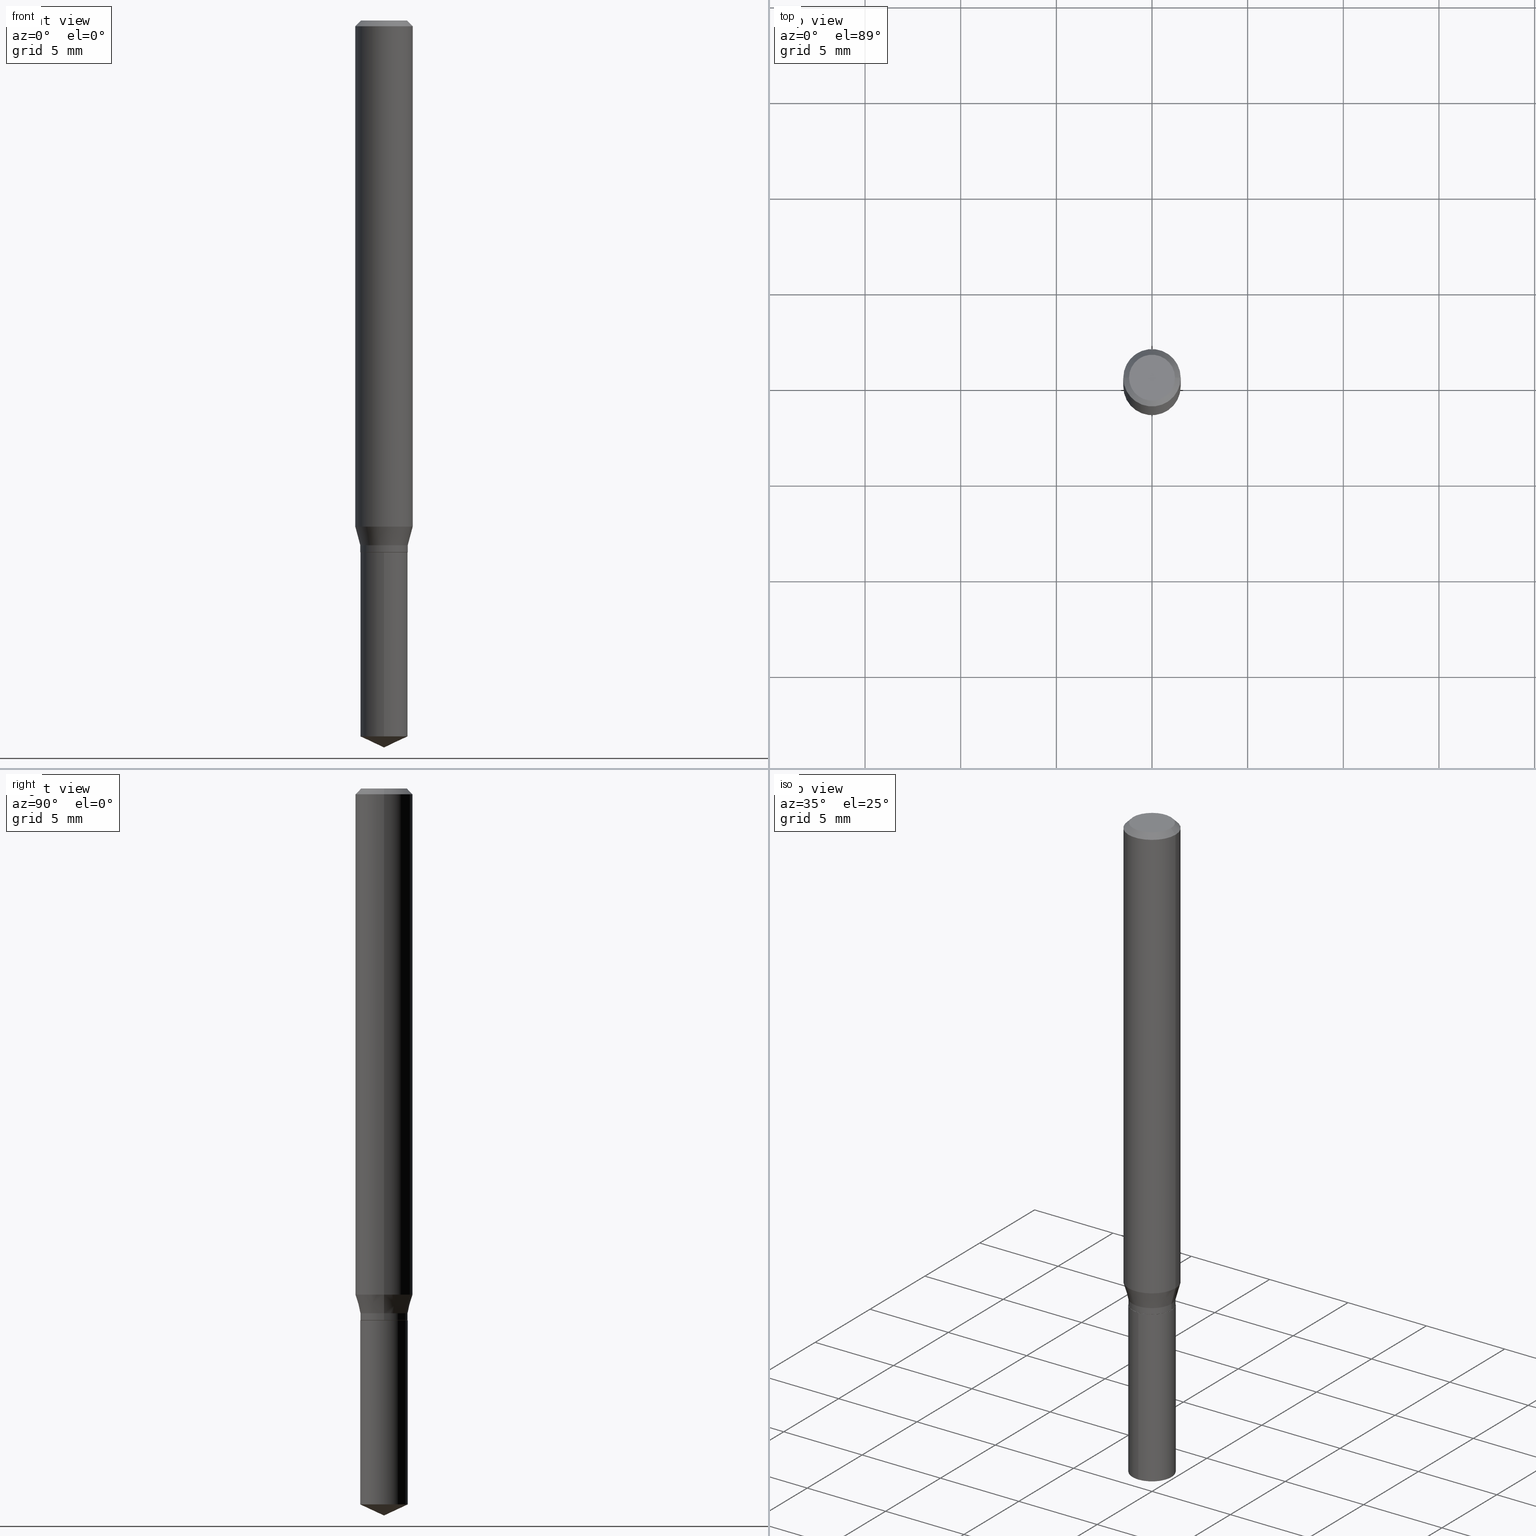
[diagram: canonical four-view strip — front | top / right | iso, engineering-drawing reading convention]
A machine part, canonical four-view strip (front | top / right | iso — engineering-drawing reading convention). The complete STEP part file that produces these views, byte-faithful:
ISO-10303-21;
HEADER;
FILE_DESCRIPTION (( 'STEP AP203' ),
    '1' );
FILE_NAME ('07658.STEP',
    '2024-04-24T00:31:44',
    ( '' ),
    ( '' ),
    'SwSTEP 2.0',
    'SolidWorks 2023',
    '' );
FILE_SCHEMA (( 'CONFIG_CONTROL_DESIGN' ));
ENDSEC;

DATA;
#1 = VECTOR ( 'NONE', #10, 39.37007874015748143 ) ;
#2 = ORIENTED_EDGE ( 'NONE', *, *, #255, .F. ) ;
#3 = DIRECTION ( 'NONE',  ( -2.445468806185136597E-29, 3.491481338843145583E-15, 1.000000000000000000 ) ) ;
#4 = ORIENTED_EDGE ( 'NONE', *, *, #66, .T. ) ;
#5 = CARTESIAN_POINT ( 'NONE',  ( 0.05905000000000013016, -4.049233189994112678E-15, -1.041646479222418487 ) ) ;
#6 = EDGE_LOOP ( 'NONE', ( #155, #194, #118 ) ) ;
#7 = APPROVAL ( #53, 'UNSPECIFIED' ) ;
#8 = FACE_OUTER_BOUND ( 'NONE', #63, .T. ) ;
#9 = AXIS2_PLACEMENT_3D ( 'NONE', #309, #426, #156 ) ;
#10 = DIRECTION ( 'NONE',  ( -2.445458899330790108E-29, 3.491495526022433599E-15, 1.000000000000000000 ) ) ;
#11 = FACE_OUTER_BOUND ( 'NONE', #145, .T. ) ;
#12 = EDGE_CURVE ( 'NONE', #253, #87, #315, .T. ) ;
#13 = CARTESIAN_POINT ( 'NONE',  ( 2.547313972010998166E-29, -3.636889243876738547E-15, -1.041646479222418487 ) ) ;
#14 = PERSON_AND_ORGANIZATION_ROLE ( 'design_supplier' ) ;
#15 = APPROVAL ( #433, 'UNSPECIFIED' ) ;
#16 = DIRECTION ( 'NONE',  ( -2.445468806185136597E-29, 3.491481338843145583E-15, 1.000000000000000000 ) ) ;
#17 = APPLICATION_PROTOCOL_DEFINITION ( 'international standard', 'config_control_design', 1994, #197 ) ;
#18 = DIRECTION ( 'NONE',  ( -2.445458899330790108E-29, 3.491495526022433205E-15, 1.000000000000000000 ) ) ;
#19 = CONICAL_SURFACE ( 'NONE', #85, 0.04880000000000000310, 0.2617993877991498519 ) ;
#20 = CONICAL_SURFACE ( 'NONE', #86, 84.42940631927420725, 1.134464013796315340 ) ;
#21 = CARTESIAN_POINT ( 'NONE',  ( 8.265746106709734507E-48, -1.180129479067563789E-33, -3.380025165646692144E-19 ) ) ;
#22 = ADVANCED_FACE ( 'NONE', ( #346 ), #152, .T. ) ;
#23 = CARTESIAN_POINT ( 'NONE',  ( 0.000000000000000000, 0.000000000000000000, 0.000000000000000000 ) ) ;
#24 = CARTESIAN_POINT ( 'NONE',  ( 2.888098660104663328E-31, -4.123439461173779030E-17, -0.01181000000000006871 ) ) ;
#25 = PERSON_AND_ORGANIZATION ( #223, #361 ) ;
#26 =( GEOMETRIC_REPRESENTATION_CONTEXT ( 3 ) GLOBAL_UNCERTAINTY_ASSIGNED_CONTEXT ( ( #339 ) ) GLOBAL_UNIT_ASSIGNED_CONTEXT ( ( #457, #311, #234 ) ) REPRESENTATION_CONTEXT ( 'NONE', 'WORKASPACE' ) );
#27 = ORIENTED_EDGE ( 'NONE', *, *, #439, .T. ) ;
#28 = AXIS2_PLACEMENT_3D ( 'NONE', #163, #3, #89 ) ;
#29 = ADVANCED_FACE ( 'NONE', ( #425 ), #465, .T. ) ;
#30 = PRODUCT_DEFINITION_SHAPE ( 'NONE', 'NONE',  #331 ) ;
#31 = EDGE_CURVE ( 'NONE', #442, #365, #427, .T. ) ;
#32 = VERTEX_POINT ( 'NONE', #126 ) ;
#33 = CARTESIAN_POINT ( 'NONE',  ( 2.640861763799328493E-29, -3.770450697816712503E-15, -1.079899999999999860 ) ) ;
#34 = AXIS2_PLACEMENT_3D ( 'NONE', #277, #272, #384 ) ;
#35 = FACE_OUTER_BOUND ( 'NONE', #290, .T. ) ;
#36 = VERTEX_POINT ( 'NONE', #90 ) ;
#37 = EDGE_CURVE ( 'NONE', #83, #442, #430, .T. ) ;
#38 = CARTESIAN_POINT ( 'NONE',  ( -0.05904999999999999832, -1.419486333777897856E-15, -0.01181000000000006871 ) ) ;
#39 = ORIENTED_EDGE ( 'NONE', *, *, #255, .T. ) ;
#40 = DIRECTION ( 'NONE',  ( 0.7071067811865453523, -7.319954787623248157E-15, -0.7071067811865496822 ) ) ;
#41 = DIRECTION ( 'NONE',  ( 1.000000000000000000, -6.982962677686266711E-15, 0.000000000000000000 ) ) ;
#42 = DIRECTION ( 'NONE',  ( 1.000000000000000000, -6.982962677686267499E-15, 4.876176775795935793E-29 ) ) ;
#43 = LOCAL_TIME ( 20, 31, 44.00000000000000000, #401 ) ;
#44 = EDGE_CURVE ( 'NONE', #46, #267, #213, .T. ) ;
#45 = EDGE_LOOP ( 'NONE', ( #489, #4, #332, #400 ) ) ;
#46 = VERTEX_POINT ( 'NONE', #201 ) ;
#47 = DIRECTION ( 'NONE',  ( -6.982962677686266711E-15, -1.000000000000000000, 3.520397390770459392E-15 ) ) ;
#48 = LINE ( 'NONE', #84, #313 ) ;
#49 = CIRCLE ( 'NONE', #229, 0.04724000000000000421 ) ;
#50 = DIRECTION ( 'NONE',  ( -2.445468806185136877E-29, 3.491481338843145188E-15, 1.000000000000000000 ) ) ;
#51 = CALENDAR_DATE ( 2024, 23, 4 ) ;
#52 = DIRECTION ( 'NONE',  ( -6.982962677686266711E-15, -1.000000000000000000, 5.598049167344801153E-15 ) ) ;
#53 = APPROVAL_STATUS ( 'not_yet_approved' ) ;
#54 = ADVANCED_BREP_SHAPE_REPRESENTATION ( '07658', ( #80, #233, #130 ), #26 ) ;
#55 = CARTESIAN_POINT ( 'NONE',  ( -0.04830000000000000265, -3.478234183991694710E-15, -1.094500000000000028 ) ) ;
#56 = PERSON_AND_ORGANIZATION ( #223, #361 ) ;
#57 = EDGE_CURVE ( 'NONE', #365, #77, #387, .T. ) ;
#58 = DIRECTION ( 'NONE',  ( -2.445468806185136597E-29, 3.491481338843145583E-15, 1.000000000000000000 ) ) ;
#59 = CONICAL_SURFACE ( 'NONE', #397, 0.04880000000000000310, 0.2617993877991498519 ) ;
#60 = LOCAL_TIME ( 20, 31, 44.00000000000000000, #133 ) ;
#61 = AXIS2_PLACEMENT_3D ( 'NONE', #245, #394, #319 ) ;
#62 = CARTESIAN_POINT ( 'NONE',  ( 3.603013495172768247E-29, -5.144159106827160927E-15, -1.473344186282036006 ) ) ;
#63 = EDGE_LOOP ( 'NONE', ( #269, #71 ) ) ;
#64 = DATE_AND_TIME ( #281, #43 ) ;
#65 = ORIENTED_EDGE ( 'NONE', *, *, #44, .T. ) ;
#66 = EDGE_CURVE ( 'NONE', #411, #267, #235, .T. ) ;
#67 = APPLICATION_CONTEXT ( 'configuration controlled 3d designs of mechanical parts and assemblies' ) ;
#68 = AXIS2_PLACEMENT_3D ( 'NONE', #92, #423, #42 ) ;
#69 = CC_DESIGN_DATE_AND_TIME_ASSIGNMENT ( #176, #324, ( #114 ) ) ;
#70 = CARTESIAN_POINT ( 'NONE',  ( 2.676565608369632355E-29, -3.821426325363822773E-15, -1.094500000000000028 ) ) ;
#71 = ORIENTED_EDGE ( 'NONE', *, *, #406, .T. ) ;
#72 = CYLINDRICAL_SURFACE ( 'NONE', #170, 0.05905000000000006771 ) ;
#73 = ORIENTED_EDGE ( 'NONE', *, *, #143, .T. ) ;
#74 = CONICAL_SURFACE ( 'NONE', #262, 0.04830000000000000265, 0.7853981633972775267 ) ;
#75 = DIRECTION ( 'NONE',  ( 6.982962677686265922E-15, 1.000000000000000000, -3.491495526022433599E-15 ) ) ;
#76 = AXIS2_PLACEMENT_3D ( 'NONE', #469, #132, #405 ) ;
#77 = VERTEX_POINT ( 'NONE', #165 ) ;
#78 = CARTESIAN_POINT ( 'NONE',  ( 2.547313972010998166E-29, -3.636889243876738547E-15, -1.041646479222418487 ) ) ;
#79 = CARTESIAN_POINT ( 'NONE',  ( 2.888098660104663328E-31, -4.123439461173779030E-17, -0.01181000000000006871 ) ) ;
#80 = MANIFOLD_SOLID_BREP ( 'Body-Move/Copy2[1]', #184 ) ;
#81 = ADVANCED_FACE ( 'NONE', ( #237 ), #434, .T. ) ;
#82 =( LENGTH_UNIT ( ) NAMED_UNIT ( * ) SI_UNIT ( $, .METRE. ) );
#83 = VERTEX_POINT ( 'NONE', #204 ) ;
#84 = CARTESIAN_POINT ( 'NONE',  ( 0.04880000000000000310, -4.111219276487801832E-15, -1.079899999999999860 ) ) ;
#85 = AXIS2_PLACEMENT_3D ( 'NONE', #484, #185, #340 ) ;
#86 = AXIS2_PLACEMENT_3D ( 'NONE', #134, #284, #47 ) ;
#87 = VERTEX_POINT ( 'NONE', #385 ) ;
#88 = CARTESIAN_POINT ( 'NONE',  ( -0.04880000000000000310, 3.467448550509289127E-16, -2.400440324044393995E-30 ) ) ;
#89 = DIRECTION ( 'NONE',  ( 1.000000000000000000, -6.982962677686264344E-15, 0.000000000000000000 ) ) ;
#90 = CARTESIAN_POINT ( 'NONE',  ( -3.407685786710537815E-16, -0.04880000000000515176, -1.473344186282035784 ) ) ;
#91 = ADVANCED_FACE ( 'NONE', ( #93 ), #230, .T. ) ;
#92 = CARTESIAN_POINT ( 'NONE',  ( 0.000000000000000000, 0.000000000000000000, 0.000000000000000000 ) ) ;
#93 = FACE_OUTER_BOUND ( 'NONE', #409, .T. ) ;
#94 = CARTESIAN_POINT ( 'NONE',  ( 3.467448550509555861E-16, 0.04879999999999617977, -1.094500000000000028 ) ) ;
#95 = APPROVAL_ROLE ( '' ) ;
#96 = EDGE_CURVE ( 'NONE', #402, #87, #360, .T. ) ;
#97 = CARTESIAN_POINT ( 'NONE',  ( 3.603013495172768247E-29, -5.144159106827160927E-15, -1.473344186282036006 ) ) ;
#98 = ADVANCED_FACE ( 'NONE', ( #171 ), #481, .T. ) ;
#99 = CARTESIAN_POINT ( 'NONE',  ( 0.000000000000000000, 0.000000000000000000, 0.000000000000000000 ) ) ;
#100 = VECTOR ( 'NONE', #40, 39.37007874015748143 ) ;
#101 = AXIS2_PLACEMENT_3D ( 'NONE', #456, #273, #124 ) ;
#102 = PERSON_AND_ORGANIZATION ( #223, #361 ) ;
#103 = ORIENTED_EDGE ( 'NONE', *, *, #260, .F. ) ;
#104 = ADVANCED_FACE ( 'NONE', ( #462 ), #20, .T. ) ;
#105 = ORIENTED_EDGE ( 'NONE', *, *, #37, .F. ) ;
#106 = CIRCLE ( 'NONE', #200, 0.05904999999999999832 ) ;
#107 = ORIENTED_EDGE ( 'NONE', *, *, #31, .F. ) ;
#108 = CARTESIAN_POINT ( 'NONE',  ( -0.04724000000000000421, 3.504923541997677355E-16, -3.380025165670481712E-19 ) ) ;
#109 = PRODUCT ( '07658', '07658', '', ( #251 ) ) ;
#110 = DIRECTION ( 'NONE',  ( -0.7071067811865453523, 2.468850131082234184E-15, -0.7071067811865496822 ) ) ;
#111 = VERTEX_POINT ( 'NONE', #198 ) ;
#112 = DIRECTION ( 'NONE',  ( 2.445458899330789267E-29, -3.491495526022433599E-15, -1.000000000000000000 ) ) ;
#113 = EDGE_LOOP ( 'NONE', ( #140, #350, #341, #440 ) ) ;
#114 = SECURITY_CLASSIFICATION ( '', '', #366 ) ;
#115 = CARTESIAN_POINT ( 'NONE',  ( 0.04880000000000000310, -4.111219276487801832E-15, -1.079899999999999860 ) ) ;
#116 = EDGE_LOOP ( 'NONE', ( #407, #27, #2, #338 ) ) ;
#117 = CARTESIAN_POINT ( 'NONE',  ( 0.04830000000000000265, -4.158703422696069885E-15, -1.094500000000000028 ) ) ;
#118 = ORIENTED_EDGE ( 'NONE', *, *, #167, .F. ) ;
#119 = DIRECTION ( 'NONE',  ( -0.2588190451025211281, 5.211531920934547886E-15, 0.9659258262890679791 ) ) ;
#120 = ORIENTED_EDGE ( 'NONE', *, *, #96, .T. ) ;
#121 = LINE ( 'NONE', #117, #280 ) ;
#122 = CIRCLE ( 'NONE', #160, 0.04880000000000000310 ) ;
#123 = AXIS2_PLACEMENT_3D ( 'NONE', #363, #18, #128 ) ;
#124 = DIRECTION ( 'NONE',  ( -1.000000000000000000, 6.982962677686266711E-15, 0.000000000000000000 ) ) ;
#125 = CARTESIAN_POINT ( 'NONE',  ( -0.05905000000000006771, 4.195754854663396409E-16, -2.904631170795525045E-30 ) ) ;
#126 = CARTESIAN_POINT ( 'NONE',  ( 0.04880000000000000310, -4.160449163365490599E-15, -1.093999999999999861 ) ) ;
#127 = PLANE ( 'NONE',  #9 ) ;
#128 = DIRECTION ( 'NONE',  ( -6.982962677686266711E-15, -1.000000000000000000, 2.799024583672400577E-15 ) ) ;
#129 = APPROVAL_STATUS ( 'not_yet_approved' ) ;
#130 = AXIS2_PLACEMENT_3D ( 'NONE', #23, #431, #358 ) ;
#131 = CC_DESIGN_APPROVAL ( #7, ( #381 ) ) ;
#132 = DIRECTION ( 'NONE',  ( -2.445468806185136597E-29, 3.491481338843145583E-15, 1.000000000000000000 ) ) ;
#133 = COORDINATED_UNIVERSAL_TIME_OFFSET ( 5, 0, .BEHIND. ) ;
#134 = CARTESIAN_POINT ( 'NONE',  ( -9.261924752013118283E-28, 1.322368428517963298E-13, 37.87397874015748300 ) ) ;
#135 = CALENDAR_DATE ( 2024, 23, 4 ) ;
#136 = DIRECTION ( 'NONE',  ( -2.445468806185136597E-29, 3.491481338843145583E-15, 1.000000000000000000 ) ) ;
#137 = CIRCLE ( 'NONE', #328, 0.04880000000000000310 ) ;
#138 = COORDINATED_UNIVERSAL_TIME_OFFSET ( 5, 0, .BEHIND. ) ;
#139 = ORIENTED_EDGE ( 'NONE', *, *, #439, .F. ) ;
#140 = ORIENTED_EDGE ( 'NONE', *, *, #429, .F. ) ;
#141 = LINE ( 'NONE', #371, #335 ) ;
#142 = APPROVAL_PERSON_ORGANIZATION ( #480, #342, #172 ) ;
#143 = EDGE_CURVE ( 'NONE', #186, #36, #391, .T. ) ;
#144 = CARTESIAN_POINT ( 'NONE',  ( -0.05904999999999999832, 3.711095515056362547E-16, -0.01181000000000006871 ) ) ;
#145 = EDGE_LOOP ( 'NONE', ( #217, #180, #454, #348 ) ) ;
#146 = CARTESIAN_POINT ( 'NONE',  ( 2.640861763799328493E-29, -3.770450697816712503E-15, -1.079899999999999860 ) ) ;
#147 = ORIENTED_EDGE ( 'NONE', *, *, #248, .F. ) ;
#148 = FACE_OUTER_BOUND ( 'NONE', #447, .T. ) ;
#149 = ORIENTED_EDGE ( 'NONE', *, *, #464, .T. ) ;
#150 = VECTOR ( 'NONE', #119, 39.37007874015748854 ) ;
#151 = DIRECTION ( 'NONE',  ( -2.445458899330790108E-29, 3.491495526022433205E-15, 1.000000000000000000 ) ) ;
#152 = CONICAL_SURFACE ( 'NONE', #101, 0.05904999999999999832, 0.7853981633974452814 ) ;
#153 = ORIENTED_EDGE ( 'NONE', *, *, #214, .F. ) ;
#154 = CYLINDRICAL_SURFACE ( 'NONE', #212, 0.04880000000000000310 ) ;
#155 = ORIENTED_EDGE ( 'NONE', *, *, #143, .F. ) ;
#156 = DIRECTION ( 'NONE',  ( -1.000000000000000000, 6.982962677686265922E-15, -4.876176775795935793E-29 ) ) ;
#157 = CARTESIAN_POINT ( 'NONE',  ( -9.261924752013118283E-28, 1.322368428517963298E-13, 37.87397874015748300 ) ) ;
#158 = EDGE_CURVE ( 'NONE', #232, #402, #451, .T. ) ;
#159 = LINE ( 'NONE', #377, #100 ) ;
#160 = AXIS2_PLACEMENT_3D ( 'NONE', #299, #257, #303 ) ;
#161 = AXIS2_PLACEMENT_3D ( 'NONE', #97, #317, #52 ) ;
#162 = DIRECTION ( 'NONE',  ( 1.000000000000000000, -6.982962677686265133E-15, 0.000000000000000000 ) ) ;
#163 = CARTESIAN_POINT ( 'NONE',  ( 2.676565608369632355E-29, -3.821426325363822773E-15, -1.094500000000000028 ) ) ;
#164 = CC_DESIGN_PERSON_AND_ORGANIZATION_ASSIGNMENT ( #476, #14, ( #381 ) ) ;
#165 = CARTESIAN_POINT ( 'NONE',  ( -0.04880000000000000310, -3.448320786204627530E-15, -1.079899999999999860 ) ) ;
#166 = PERSON_AND_ORGANIZATION_ROLE ( 'design_owner' ) ;
#167 = EDGE_CURVE ( 'NONE', #36, #411, #250, .T. ) ;
#168 = DIRECTION ( 'NONE',  ( -2.445458899330790108E-29, 3.491495526022433599E-15, 1.000000000000000000 ) ) ;
#169 = DATE_AND_TIME ( #135, #206 ) ;
#170 = AXIS2_PLACEMENT_3D ( 'NONE', #99, #136, #475 ) ;
#171 = FACE_OUTER_BOUND ( 'NONE', #382, .T. ) ;
#172 = APPROVAL_ROLE ( '' ) ;
#173 = DIRECTION ( 'NONE',  ( 1.000000000000000000, -6.982962677686264344E-15, 0.000000000000000000 ) ) ;
#174 = DATE_AND_TIME ( #441, #404 ) ;
#175 = LINE ( 'NONE', #144, #437 ) ;
#176 = DATE_AND_TIME ( #51, #60 ) ;
#177 = EDGE_CURVE ( 'NONE', #36, #46, #203, .T. ) ;
#178 = CIRCLE ( 'NONE', #34, 0.04724000000000000421 ) ;
#179 = ORIENTED_EDGE ( 'NONE', *, *, #412, .F. ) ;
#180 = ORIENTED_EDGE ( 'NONE', *, *, #275, .T. ) ;
#181 = ORIENTED_EDGE ( 'NONE', *, *, #369, .T. ) ;
#182 = DIRECTION ( 'NONE',  ( 1.000000000000000000, -6.982962677686264344E-15, 0.000000000000000000 ) ) ;
#183 = AXIS2_PLACEMENT_3D ( 'NONE', #448, #112, #75 ) ;
#184 = CLOSED_SHELL ( 'NONE', ( #81, #104, #91, #421, #285 ) ) ;
#185 = DIRECTION ( 'NONE',  ( -2.445468806185136597E-29, 3.491481338843145583E-15, 1.000000000000000000 ) ) ;
#186 = VERTEX_POINT ( 'NONE', #320 ) ;
#187 = EDGE_CURVE ( 'NONE', #77, #263, #289, .T. ) ;
#188 = DIRECTION ( 'NONE',  ( -2.445468806185136597E-29, 3.491481338843145583E-15, 1.000000000000000000 ) ) ;
#189 = ORIENTED_EDGE ( 'NONE', *, *, #66, .F. ) ;
#190 = ORIENTED_EDGE ( 'NONE', *, *, #482, .T. ) ;
#191 = CIRCLE ( 'NONE', #372, 0.04880000000000000310 ) ;
#192 = CARTESIAN_POINT ( 'NONE',  ( 2.676565608369631794E-29, -3.821426325363822773E-15, -1.094499999999999806 ) ) ;
#193 = AXIS2_PLACEMENT_3D ( 'NONE', #157, #240, #278 ) ;
#194 = ORIENTED_EDGE ( 'NONE', *, *, #412, .T. ) ;
#195 = CARTESIAN_POINT ( 'NONE',  ( -0.04880000000000000310, -3.423705842765783541E-15, -1.079899999999999860 ) ) ;
#196 = EDGE_LOOP ( 'NONE', ( #65, #370 ) ) ;
#197 = APPLICATION_CONTEXT ( 'configuration controlled 3d designs of mechanical parts and assemblies' ) ;
#198 = CARTESIAN_POINT ( 'NONE',  ( 0.04724000000000000421, -3.852183633974369345E-16, -3.380025165621689721E-19 ) ) ;
#199 = PLANE ( 'NONE',  #247 ) ;
#200 = AXIS2_PLACEMENT_3D ( 'NONE', #24, #399, #286 ) ;
#201 = CARTESIAN_POINT ( 'NONE',  ( -3.407685786710630506E-16, -0.04880000000000382643, -1.094499999999999806 ) ) ;
#202 = ADVANCED_FACE ( 'NONE', ( #444 ), #59, .T. ) ;
#203 = LINE ( 'NONE', #357, #362 ) ;
#204 = CARTESIAN_POINT ( 'NONE',  ( 0.04830000000000000265, -4.158703422696069885E-15, -1.094500000000000028 ) ) ;
#205 = SHAPE_DEFINITION_REPRESENTATION ( #30, #54 ) ;
#206 = LOCAL_TIME ( 20, 31, 44.00000000000000000, #138 ) ;
#207 = DIRECTION ( 'NONE',  ( -0.7071067811864267805, 7.493145998869918709E-15, 0.7071067811866682540 ) ) ;
#208 = DIRECTION ( 'NONE',  ( -2.445458899330790108E-29, 3.491495526022433205E-15, 1.000000000000000000 ) ) ;
#209 = ADVANCED_FACE ( 'NONE', ( #296 ), #72, .T. ) ;
#210 = APPROVAL_ROLE ( '' ) ;
#211 = EDGE_CURVE ( 'NONE', #402, #232, #443, .T. ) ;
#212 = AXIS2_PLACEMENT_3D ( 'NONE', #192, #151, #463 ) ;
#213 = CIRCLE ( 'NONE', #337, 0.04880000000000000310 ) ;
#214 = EDGE_CURVE ( 'NONE', #32, #263, #141, .T. ) ;
#215 = ORIENTED_EDGE ( 'NONE', *, *, #57, .T. ) ;
#216 = DIRECTION ( 'NONE',  ( 1.000000000000000000, -6.982962677686264344E-15, 0.000000000000000000 ) ) ;
#217 = ORIENTED_EDGE ( 'NONE', *, *, #57, .F. ) ;
#218 = PLANE ( 'NONE',  #183 ) ;
#219 = AXIS2_PLACEMENT_3D ( 'NONE', #374, #446, #173 ) ;
#220 = ORIENTED_EDGE ( 'NONE', *, *, #329, .F. ) ;
#221 = VECTOR ( 'NONE', #355, 39.37007874015748143 ) ;
#222 = DIRECTION ( 'NONE',  ( -2.445468806185136597E-29, 3.491481338843145583E-15, 1.000000000000000000 ) ) ;
#223 = PERSON ( 'UNSPECIFIED', 'UNSPECIFIED', 'UNSPECIFIED', ('UNSPECIFIED'), ('UNSPECIFIED'), ('UNSPECIFIED') ) ;
#224 = VERTEX_POINT ( 'NONE', #108 ) ;
#225 = DIRECTION ( 'NONE',  ( -2.445468806185136597E-29, 3.491481338843145583E-15, 1.000000000000000000 ) ) ;
#226 = DIRECTION ( 'NONE',  ( -2.445468806185136597E-29, 3.491481338843145583E-15, 1.000000000000000000 ) ) ;
#227 = LINE ( 'NONE', #195, #150 ) ;
#228 = ORIENTED_EDGE ( 'NONE', *, *, #12, .T. ) ;
#229 = AXIS2_PLACEMENT_3D ( 'NONE', #21, #488, #249 ) ;
#230 = CONICAL_SURFACE ( 'NONE', #193, 84.42940631927420725, 1.134464013796315340 ) ;
#231 = DIRECTION ( 'NONE',  ( 6.439704144417027987E-15, 0.9063077870366519351, 0.4226182617406953335 ) ) ;
#232 = VERTEX_POINT ( 'NONE', #364 ) ;
#233 = MANIFOLD_SOLID_BREP ( 'Body-Move/Copy2[2]', #453 ) ;
#234 =( NAMED_UNIT ( * ) SI_UNIT ( $, .STERADIAN. ) SOLID_ANGLE_UNIT ( ) );
#235 = LINE ( 'NONE', #94, #1 ) ;
#236 = CARTESIAN_POINT ( 'NONE',  ( -0.04830000000000000265, -3.475584956817583114E-15, -1.094500000000000028 ) ) ;
#237 = FACE_OUTER_BOUND ( 'NONE', #45, .T. ) ;
#238 = PERSON_AND_ORGANIZATION_ROLE ( 'creator' ) ;
#239 = CIRCLE ( 'NONE', #28, 0.04830000000000000265 ) ;
#240 = DIRECTION ( 'NONE',  ( -2.445458899330790108E-29, 3.491495526022433205E-15, 1.000000000000000000 ) ) ;
#241 = DATE_TIME_ROLE ( 'creation_date' ) ;
#242 = CARTESIAN_POINT ( 'NONE',  ( 0.000000000000000000, 0.000000000000000000, 0.000000000000000000 ) ) ;
#243 = COORDINATED_UNIVERSAL_TIME_OFFSET ( 5, 0, .BEHIND. ) ;
#244 = DIMENSIONAL_EXPONENTS ( 1.000000000000000000, 0.000000000000000000, 0.000000000000000000, 0.000000000000000000, 0.000000000000000000, 0.000000000000000000, 0.000000000000000000 ) ;
#245 = CARTESIAN_POINT ( 'NONE',  ( 2.676565608369632355E-29, -3.821426325363822773E-15, -1.094500000000000028 ) ) ;
#246 = APPROVAL_DATE_TIME ( #169, #7 ) ;
#247 = AXIS2_PLACEMENT_3D ( 'NONE', #316, #386, #351 ) ;
#248 = EDGE_CURVE ( 'NONE', #224, #111, #49, .T. ) ;
#249 = DIRECTION ( 'NONE',  ( 1.000000000000000000, -6.982962677686266711E-15, 4.876185090822587894E-29 ) ) ;
#250 = CIRCLE ( 'NONE', #161, 0.04880000000000000310 ) ;
#251 = MECHANICAL_CONTEXT ( 'NONE', #197, 'mechanical' ) ;
#252 = CC_DESIGN_PERSON_AND_ORGANIZATION_ASSIGNMENT ( #321, #238, ( #381 ) ) ;
#253 = VERTEX_POINT ( 'NONE', #38 ) ;
#254 = ORIENTED_EDGE ( 'NONE', *, *, #37, .T. ) ;
#255 = EDGE_CURVE ( 'NONE', #87, #253, #106, .T. ) ;
#256 = CYLINDRICAL_SURFACE ( 'NONE', #483, 0.05905000000000006771 ) ;
#257 = DIRECTION ( 'NONE',  ( -2.445468806185136597E-29, 3.491481338843145583E-15, 1.000000000000000000 ) ) ;
#258 = EDGE_LOOP ( 'NONE', ( #189, #181, #485, #416 ) ) ;
#259 = FACE_OUTER_BOUND ( 'NONE', #116, .T. ) ;
#260 = EDGE_CURVE ( 'NONE', #224, #253, #175, .T. ) ;
#261 = AXIS2_PLACEMENT_3D ( 'NONE', #474, #312, #323 ) ;
#262 = AXIS2_PLACEMENT_3D ( 'NONE', #70, #188, #216 ) ;
#263 = VERTEX_POINT ( 'NONE', #115 ) ;
#264 = DIRECTION ( 'NONE',  ( -2.445468806185136597E-29, 3.491481338843145583E-15, 1.000000000000000000 ) ) ;
#265 = ORIENTED_EDGE ( 'NONE', *, *, #369, .F. ) ;
#266 = DIRECTION ( 'NONE',  ( -2.445458899330790108E-29, 3.491495526022433205E-15, 1.000000000000000000 ) ) ;
#267 = VERTEX_POINT ( 'NONE', #326 ) ;
#268 = ADVANCED_FACE ( 'NONE', ( #148 ), #270, .T. ) ;
#269 = ORIENTED_EDGE ( 'NONE', *, *, #248, .T. ) ;
#270 = CONICAL_SURFACE ( 'NONE', #219, 0.04830000000000000265, 0.7853981633972775267 ) ;
#271 = AXIS2_PLACEMENT_3D ( 'NONE', #79, #226, #41 ) ;
#272 = DIRECTION ( 'NONE',  ( -2.445468806185136597E-29, 3.491481338843145583E-15, 1.000000000000000000 ) ) ;
#273 = DIRECTION ( 'NONE',  ( 2.445468806185136597E-29, -3.491481338843145583E-15, -1.000000000000000000 ) ) ;
#274 = FACE_OUTER_BOUND ( 'NONE', #258, .T. ) ;
#275 = EDGE_CURVE ( 'NONE', #365, #32, #122, .T. ) ;
#276 = DIRECTION ( 'NONE',  ( -2.445468806185136877E-29, 3.491481338843145188E-15, 1.000000000000000000 ) ) ;
#277 = CARTESIAN_POINT ( 'NONE',  ( 8.265746106709734507E-48, -1.180129479067563789E-33, -3.380025165646692144E-19 ) ) ;
#278 = DIRECTION ( 'NONE',  ( -6.982962677686266711E-15, -1.000000000000000000, 3.520397390770459392E-15 ) ) ;
#279 = CC_DESIGN_PERSON_AND_ORGANIZATION_ASSIGNMENT ( #56, #438, ( #331 ) ) ;
#280 = VECTOR ( 'NONE', #347, 39.37007874015748143 ) ;
#281 = CALENDAR_DATE ( 2024, 23, 4 ) ;
#282 = DIRECTION ( 'NONE',  ( 1.000000000000000000, -6.982962677686267499E-15, 4.876176775795935793E-29 ) ) ;
#283 = PERSON_AND_ORGANIZATION ( #223, #361 ) ;
#284 = DIRECTION ( 'NONE',  ( -2.445458899330790108E-29, 3.491495526022433205E-15, 1.000000000000000000 ) ) ;
#285 = ADVANCED_FACE ( 'NONE', ( #408 ), #218, .F. ) ;
#286 = DIRECTION ( 'NONE',  ( 1.000000000000000000, -6.982962677686266711E-15, 0.000000000000000000 ) ) ;
#287 = APPROVAL_DATE_TIME ( #174, #342 ) ;
#288 = CC_DESIGN_DATE_AND_TIME_ASSIGNMENT ( #64, #241, ( #331 ) ) ;
#289 = CIRCLE ( 'NONE', #76, 0.04880000000000000310 ) ;
#290 = EDGE_LOOP ( 'NONE', ( #107, #149, #367, #307 ) ) ;
#291 = CALENDAR_DATE ( 2024, 23, 4 ) ;
#292 = ADVANCED_FACE ( 'NONE', ( #259 ), #256, .T. ) ;
#293 = EDGE_LOOP ( 'NONE', ( #305, #383, #478, #310 ) ) ;
#294 = PRODUCT_RELATED_PRODUCT_CATEGORY ( 'detail', '', ( #109 ) ) ;
#295 = ORIENTED_EDGE ( 'NONE', *, *, #12, .F. ) ;
#296 = FACE_OUTER_BOUND ( 'NONE', #403, .T. ) ;
#297 = VECTOR ( 'NONE', #231, 39.37007874015748854 ) ;
#298 = AXIS2_PLACEMENT_3D ( 'NONE', #13, #16, #162 ) ;
#299 = CARTESIAN_POINT ( 'NONE',  ( 2.675342873966538993E-29, -3.819680584694400481E-15, -1.093999999999999861 ) ) ;
#300 = ORIENTED_EDGE ( 'NONE', *, *, #158, .T. ) ;
#301 = DIRECTION ( 'NONE',  ( -2.445468806185136597E-29, 3.491481338843145583E-15, 1.000000000000000000 ) ) ;
#302 = EDGE_LOOP ( 'NONE', ( #105, #373 ) ) ;
#303 = DIRECTION ( 'NONE',  ( 1.000000000000000000, -6.982962677686264344E-15, 0.000000000000000000 ) ) ;
#304 = AXIS2_PLACEMENT_3D ( 'NONE', #306, #266, #466 ) ;
#305 = ORIENTED_EDGE ( 'NONE', *, *, #353, .T. ) ;
#306 = CARTESIAN_POINT ( 'NONE',  ( 2.676565608369631794E-29, -3.821426325363822773E-15, -1.094499999999999806 ) ) ;
#307 = ORIENTED_EDGE ( 'NONE', *, *, #275, .F. ) ;
#308 = ADVANCED_FACE ( 'NONE', ( #35 ), #74, .T. ) ;
#309 = CARTESIAN_POINT ( 'NONE',  ( 4.132873053354867254E-48, -5.900647395337818946E-34, -1.690012582823346072E-19 ) ) ;
#310 = ORIENTED_EDGE ( 'NONE', *, *, #467, .F. ) ;
#311 =( NAMED_UNIT ( * ) PLANE_ANGLE_UNIT ( ) SI_UNIT ( $, .RADIAN. ) );
#312 = DIRECTION ( 'NONE',  ( 2.445468806185136597E-29, -3.491481338843145583E-15, -1.000000000000000000 ) ) ;
#313 = VECTOR ( 'NONE', #354, 39.37007874015748854 ) ;
#314 = CC_DESIGN_APPROVAL ( #15, ( #114 ) ) ;
#315 = CIRCLE ( 'NONE', #271, 0.05904999999999999832 ) ;
#316 = CARTESIAN_POINT ( 'NONE',  ( 5.151668837566053307E-30, -6.916672318185288609E-15, -1.094500000000000028 ) ) ;
#317 = DIRECTION ( 'NONE',  ( -2.445458899330790108E-29, 3.491495526022433205E-15, 1.000000000000000000 ) ) ;
#318 = CARTESIAN_POINT ( 'NONE',  ( 3.467448550509649045E-16, 0.04879999999999485444, -1.473344186282036228 ) ) ;
#319 = DIRECTION ( 'NONE',  ( 1.000000000000000000, -6.982962677686264344E-15, 0.000000000000000000 ) ) ;
#320 = CARTESIAN_POINT ( 'NONE',  ( 3.658651059288794515E-29, -5.223626456482161457E-15, -1.496099999999999985 ) ) ;
#321 = PERSON_AND_ORGANIZATION ( #223, #361 ) ;
#322 = LOCAL_TIME ( 20, 31, 44.00000000000000000, #243 ) ;
#323 = DIRECTION ( 'NONE',  ( -1.000000000000000000, 6.982962677686266711E-15, 0.000000000000000000 ) ) ;
#324 = DATE_TIME_ROLE ( 'classification_date' ) ;
#325 = DIRECTION ( 'NONE',  ( 1.000000000000000000, -6.982962677686264344E-15, 0.000000000000000000 ) ) ;
#326 = CARTESIAN_POINT ( 'NONE',  ( 3.467448550509649045E-16, 0.04879999999999617283, -1.094500000000000028 ) ) ;
#327 = APPLICATION_PROTOCOL_DEFINITION ( 'international standard', 'config_control_design', 1994, #67 ) ;
#328 = AXIS2_PLACEMENT_3D ( 'NONE', #62, #208, #455 ) ;
#329 = EDGE_CURVE ( 'NONE', #32, #365, #460, .T. ) ;
#330 = VECTOR ( 'NONE', #276, 39.37007874015748143 ) ;
#331 = PRODUCT_DEFINITION ( 'UNKNOWN', '', #381, #333 ) ;
#332 = ORIENTED_EDGE ( 'NONE', *, *, #44, .F. ) ;
#333 = DESIGN_CONTEXT ( 'detailed design', #67, 'design' ) ;
#334 = DIRECTION ( 'NONE',  ( -2.445468806185136877E-29, 3.491481338843145188E-15, 1.000000000000000000 ) ) ;
#335 = VECTOR ( 'NONE', #334, 39.37007874015748143 ) ;
#336 = CC_DESIGN_SECURITY_CLASSIFICATION ( #114, ( #381 ) ) ;
#337 = AXIS2_PLACEMENT_3D ( 'NONE', #396, #422, #432 ) ;
#338 = ORIENTED_EDGE ( 'NONE', *, *, #96, .F. ) ;
#339 = UNCERTAINTY_MEASURE_WITH_UNIT (LENGTH_MEASURE( 1.000000000000000082E-05 ), #457, 'distance_accuracy_value', 'NONE');
#340 = DIRECTION ( 'NONE',  ( 1.000000000000000000, -6.982962677686264344E-15, 0.000000000000000000 ) ) ;
#341 = ORIENTED_EDGE ( 'NONE', *, *, #467, .T. ) ;
#342 = APPROVAL ( #129, 'UNSPECIFIED' ) ;
#343 = DIRECTION ( 'NONE',  ( 1.000000000000000000, -6.982962677686265133E-15, 0.000000000000000000 ) ) ;
#344 = EDGE_LOOP ( 'NONE', ( #436, #190, #39, #103 ) ) ;
#345 = CYLINDRICAL_SURFACE ( 'NONE', #68, 0.04880000000000000310 ) ;
#346 = FACE_OUTER_BOUND ( 'NONE', #344, .T. ) ;
#347 = DIRECTION ( 'NONE',  ( 0.7071067811864267805, -2.468850131080992517E-15, 0.7071067811866682540 ) ) ;
#348 = ORIENTED_EDGE ( 'NONE', *, *, #187, .F. ) ;
#349 = LINE ( 'NONE', #415, #297 ) ;
#350 = ORIENTED_EDGE ( 'NONE', *, *, #187, .T. ) ;
#351 = DIRECTION ( 'NONE',  ( 1.000000000000000000, -6.982962677686265922E-15, 4.876176775795935793E-29 ) ) ;
#352 = CARTESIAN_POINT ( 'NONE',  ( 3.658651059288795076E-29, -5.223626456482161457E-15, -1.496099999999999985 ) ) ;
#353 = EDGE_CURVE ( 'NONE', #263, #77, #191, .T. ) ;
#354 = DIRECTION ( 'NONE',  ( 0.2588190451025211281, 1.565188264969622954E-15, 0.9659258262890679791 ) ) ;
#355 = DIRECTION ( 'NONE',  ( -6.328713451373372534E-15, -0.9063077870366488265, 0.4226182617407016062 ) ) ;
#356 = COORDINATED_UNIVERSAL_TIME_OFFSET ( 5, 0, .BEHIND. ) ;
#357 = CARTESIAN_POINT ( 'NONE',  ( -3.407685786710630506E-16, -0.04880000000000382643, -1.094499999999999806 ) ) ;
#358 = DIRECTION ( 'NONE',  ( 1.000000000000000000, 0.000000000000000000, 0.000000000000000000 ) ) ;
#359 = ADVANCED_FACE ( 'NONE', ( #435 ), #19, .T. ) ;
#360 = LINE ( 'NONE', #468, #472 ) ;
#361 = ORGANIZATION ( 'UNSPECIFIED', 'UNSPECIFIED', '' ) ;
#362 = VECTOR ( 'NONE', #168, 39.37007874015748143 ) ;
#363 = CARTESIAN_POINT ( 'NONE',  ( 2.676565608369631794E-29, -3.821426325363822773E-15, -1.094499999999999806 ) ) ;
#364 = CARTESIAN_POINT ( 'NONE',  ( -0.05905000000000013016, -3.217313758410398265E-15, -1.041646479222418487 ) ) ;
#365 = VERTEX_POINT ( 'NONE', #486 ) ;
#366 = SECURITY_CLASSIFICATION_LEVEL ( 'unclassified' ) ;
#367 = ORIENTED_EDGE ( 'NONE', *, *, #388, .T. ) ;
#368 = CARTESIAN_POINT ( 'NONE',  ( 2.675342873966538993E-29, -3.819680584694400481E-15, -1.093999999999999861 ) ) ;
#369 = EDGE_CURVE ( 'NONE', #411, #36, #137, .T. ) ;
#370 = ORIENTED_EDGE ( 'NONE', *, *, #393, .T. ) ;
#371 = CARTESIAN_POINT ( 'NONE',  ( 0.04880000000000000310, -3.407685786710898719E-16, 2.379574266588416759E-30 ) ) ;
#372 = AXIS2_PLACEMENT_3D ( 'NONE', #33, #413, #182 ) ;
#373 = ORIENTED_EDGE ( 'NONE', *, *, #464, .F. ) ;
#374 = CARTESIAN_POINT ( 'NONE',  ( 2.676565608369632355E-29, -3.821426325363822773E-15, -1.094500000000000028 ) ) ;
#375 = ORIENTED_EDGE ( 'NONE', *, *, #388, .F. ) ;
#376 = ADVANCED_FACE ( 'NONE', ( #379 ), #199, .F. ) ;
#377 = CARTESIAN_POINT ( 'NONE',  ( 0.05904999999999999832, -4.463468013801466955E-16, -0.01181000000000006871 ) ) ;
#378 = ORIENTED_EDGE ( 'NONE', *, *, #260, .T. ) ;
#379 = FACE_OUTER_BOUND ( 'NONE', #302, .T. ) ;
#380 = CC_DESIGN_PERSON_AND_ORGANIZATION_ASSIGNMENT ( #25, #473, ( #114 ) ) ;
#381 = PRODUCT_DEFINITION_FORMATION_WITH_SPECIFIED_SOURCE ( 'ANY', '', #109, .NOT_KNOWN. ) ;
#382 = EDGE_LOOP ( 'NONE', ( #419, #147, #378, #228 ) ) ;
#383 = ORIENTED_EDGE ( 'NONE', *, *, #429, .T. ) ;
#384 = DIRECTION ( 'NONE',  ( 1.000000000000000000, -6.982962677686266711E-15, 4.876185090822587894E-29 ) ) ;
#385 = CARTESIAN_POINT ( 'NONE',  ( 0.05904999999999999832, -4.535783407291118600E-16, -0.01181000000000006871 ) ) ;
#386 = DIRECTION ( 'NONE',  ( -2.438088387897960049E-29, 3.491481338843145188E-15, 1.000000000000000000 ) ) ;
#387 = LINE ( 'NONE', #88, #330 ) ;
#388 = EDGE_CURVE ( 'NONE', #83, #32, #121, .T. ) ;
#389 = CIRCLE ( 'NONE', #304, 0.04880000000000000310 ) ;
#390 = DATE_AND_TIME ( #291, #322 ) ;
#391 = LINE ( 'NONE', #352, #221 ) ;
#392 = PERSON_AND_ORGANIZATION ( #223, #361 ) ;
#393 = EDGE_CURVE ( 'NONE', #267, #46, #389, .T. ) ;
#394 = DIRECTION ( 'NONE',  ( -2.445468806185136597E-29, 3.491481338843145583E-15, 1.000000000000000000 ) ) ;
#395 = APPROVAL_DATE_TIME ( #390, #15 ) ;
#396 = CARTESIAN_POINT ( 'NONE',  ( 2.676565608369631794E-29, -3.821426325363822773E-15, -1.094499999999999806 ) ) ;
#397 = AXIS2_PLACEMENT_3D ( 'NONE', #146, #301, #410 ) ;
#398 = VECTOR ( 'NONE', #207, 39.37007874015748143 ) ;
#399 = DIRECTION ( 'NONE',  ( -2.445468806185136597E-29, 3.491481338843145583E-15, 1.000000000000000000 ) ) ;
#400 = ORIENTED_EDGE ( 'NONE', *, *, #177, .F. ) ;
#401 = COORDINATED_UNIVERSAL_TIME_OFFSET ( 5, 0, .BEHIND. ) ;
#402 = VERTEX_POINT ( 'NONE', #5 ) ;
#403 = EDGE_LOOP ( 'NONE', ( #139, #300, #120, #295 ) ) ;
#404 = LOCAL_TIME ( 20, 31, 44.00000000000000000, #356 ) ;
#405 = DIRECTION ( 'NONE',  ( 1.000000000000000000, -6.982962677686264344E-15, 0.000000000000000000 ) ) ;
#406 = EDGE_CURVE ( 'NONE', #111, #224, #178, .T. ) ;
#407 = ORIENTED_EDGE ( 'NONE', *, *, #211, .T. ) ;
#408 = FACE_OUTER_BOUND ( 'NONE', #196, .T. ) ;
#409 = EDGE_LOOP ( 'NONE', ( #179, #73, #265 ) ) ;
#410 = DIRECTION ( 'NONE',  ( 1.000000000000000000, -6.982962677686264344E-15, 0.000000000000000000 ) ) ;
#411 = VERTEX_POINT ( 'NONE', #318 ) ;
#412 = EDGE_CURVE ( 'NONE', #186, #411, #349, .T. ) ;
#413 = DIRECTION ( 'NONE',  ( -2.445468806185136597E-29, 3.491481338843145583E-15, 1.000000000000000000 ) ) ;
#414 = ORIENTED_EDGE ( 'NONE', *, *, #329, .T. ) ;
#415 = CARTESIAN_POINT ( 'NONE',  ( 3.658672935554494692E-29, -5.223595400746700193E-15, -1.496099999999999985 ) ) ;
#416 = ORIENTED_EDGE ( 'NONE', *, *, #393, .F. ) ;
#417 = DIRECTION ( 'NONE',  ( -2.445468806185136877E-29, 3.491481338843145188E-15, 1.000000000000000000 ) ) ;
#418 = APPROVAL_PERSON_ORGANIZATION ( #102, #7, #210 ) ;
#419 = ORIENTED_EDGE ( 'NONE', *, *, #482, .F. ) ;
#420 = LINE ( 'NONE', #125, #452 ) ;
#421 = ADVANCED_FACE ( 'NONE', ( #274 ), #154, .T. ) ;
#422 = DIRECTION ( 'NONE',  ( -2.445458899330790108E-29, 3.491495526022433205E-15, 1.000000000000000000 ) ) ;
#423 = DIRECTION ( 'NONE',  ( -2.445468806185136597E-29, 3.491481338843145583E-15, 1.000000000000000000 ) ) ;
#424 = CC_DESIGN_PERSON_AND_ORGANIZATION_ASSIGNMENT ( #392, #166, ( #109 ) ) ;
#425 = FACE_OUTER_BOUND ( 'NONE', #449, .T. ) ;
#426 = DIRECTION ( 'NONE',  ( 2.438088387897960049E-29, -3.491481338843145188E-15, -1.000000000000000000 ) ) ;
#427 = LINE ( 'NONE', #55, #398 ) ;
#428 = AXIS2_PLACEMENT_3D ( 'NONE', #78, #225, #343 ) ;
#429 = EDGE_CURVE ( 'NONE', #77, #232, #227, .T. ) ;
#430 = CIRCLE ( 'NONE', #61, 0.04830000000000000265 ) ;
#431 = DIRECTION ( 'NONE',  ( 0.000000000000000000, 0.000000000000000000, 1.000000000000000000 ) ) ;
#432 = DIRECTION ( 'NONE',  ( -6.982962677686266711E-15, -1.000000000000000000, 2.799024583672400577E-15 ) ) ;
#433 = APPROVAL_STATUS ( 'not_yet_approved' ) ;
#434 = CYLINDRICAL_SURFACE ( 'NONE', #123, 0.04880000000000000310 ) ;
#435 = FACE_OUTER_BOUND ( 'NONE', #293, .T. ) ;
#436 = ORIENTED_EDGE ( 'NONE', *, *, #406, .F. ) ;
#437 = VECTOR ( 'NONE', #110, 39.37007874015748143 ) ;
#438 = PERSON_AND_ORGANIZATION_ROLE ( 'creator' ) ;
#439 = EDGE_CURVE ( 'NONE', #232, #253, #420, .T. ) ;
#440 = ORIENTED_EDGE ( 'NONE', *, *, #158, .F. ) ;
#441 = CALENDAR_DATE ( 2024, 23, 4 ) ;
#442 = VERTEX_POINT ( 'NONE', #236 ) ;
#443 = CIRCLE ( 'NONE', #428, 0.05905000000000013016 ) ;
#444 = FACE_OUTER_BOUND ( 'NONE', #113, .T. ) ;
#445 = AXIS2_PLACEMENT_3D ( 'NONE', #242, #58, #282 ) ;
#446 = DIRECTION ( 'NONE',  ( -2.445468806185136597E-29, 3.491481338843145583E-15, 1.000000000000000000 ) ) ;
#447 = EDGE_LOOP ( 'NONE', ( #254, #487, #220, #375 ) ) ;
#448 = CARTESIAN_POINT ( 'NONE',  ( 2.676565608369631794E-29, -3.821426325363822773E-15, -1.094499999999999806 ) ) ;
#449 = EDGE_LOOP ( 'NONE', ( #414, #215, #458, #153 ) ) ;
#450 = CARTESIAN_POINT ( 'NONE',  ( 0.000000000000000000, 0.000000000000000000, 0.000000000000000000 ) ) ;
#451 = CIRCLE ( 'NONE', #298, 0.05905000000000013016 ) ;
#452 = VECTOR ( 'NONE', #417, 39.37007874015748143 ) ;
#453 = CLOSED_SHELL ( 'NONE', ( #268, #22, #292, #359, #29, #459, #202, #209, #98, #470, #376, #308 ) ) ;
#454 = ORIENTED_EDGE ( 'NONE', *, *, #214, .T. ) ;
#455 = DIRECTION ( 'NONE',  ( -6.982962677686266711E-15, -1.000000000000000000, 5.598049167344801153E-15 ) ) ;
#456 = CARTESIAN_POINT ( 'NONE',  ( 2.888098660104663328E-31, -4.123439461173779030E-17, -0.01181000000000006871 ) ) ;
#457 =( CONVERSION_BASED_UNIT ( 'INCH', #490 ) LENGTH_UNIT ( ) NAMED_UNIT ( #244 ) );
#458 = ORIENTED_EDGE ( 'NONE', *, *, #353, .F. ) ;
#459 = ADVANCED_FACE ( 'NONE', ( #11 ), #345, .T. ) ;
#460 = CIRCLE ( 'NONE', #479, 0.04880000000000000310 ) ;
#461 = APPROVAL_PERSON_ORGANIZATION ( #283, #15, #95 ) ;
#462 = FACE_OUTER_BOUND ( 'NONE', #6, .T. ) ;
#463 = DIRECTION ( 'NONE',  ( -6.982962677686266711E-15, -1.000000000000000000, 2.799024583672400577E-15 ) ) ;
#464 = EDGE_CURVE ( 'NONE', #442, #83, #239, .T. ) ;
#465 = CYLINDRICAL_SURFACE ( 'NONE', #445, 0.04880000000000000310 ) ;
#466 = DIRECTION ( 'NONE',  ( -6.982962677686266711E-15, -1.000000000000000000, 2.799024583672400577E-15 ) ) ;
#467 = EDGE_CURVE ( 'NONE', #263, #402, #48, .T. ) ;
#468 = CARTESIAN_POINT ( 'NONE',  ( 0.05905000000000006771, -4.123439461173745257E-16, 2.879382386107503723E-30 ) ) ;
#469 = CARTESIAN_POINT ( 'NONE',  ( 2.640861763799328493E-29, -3.770450697816712503E-15, -1.079899999999999860 ) ) ;
#470 = ADVANCED_FACE ( 'NONE', ( #8 ), #127, .F. ) ;
#471 = CC_DESIGN_APPROVAL ( #342, ( #331 ) ) ;
#472 = VECTOR ( 'NONE', #50, 39.37007874015748143 ) ;
#473 = PERSON_AND_ORGANIZATION_ROLE ( 'classification_officer' ) ;
#474 = CARTESIAN_POINT ( 'NONE',  ( 2.888098660104663328E-31, -4.123439461173779030E-17, -0.01181000000000006871 ) ) ;
#475 = DIRECTION ( 'NONE',  ( 1.000000000000000000, -6.982962677686266711E-15, 4.876176775795936353E-29 ) ) ;
#476 = PERSON_AND_ORGANIZATION ( #223, #361 ) ;
#477 = DIRECTION ( 'NONE',  ( 1.000000000000000000, -6.982962677686266711E-15, 4.876176775795936353E-29 ) ) ;
#478 = ORIENTED_EDGE ( 'NONE', *, *, #211, .F. ) ;
#479 = AXIS2_PLACEMENT_3D ( 'NONE', #368, #264, #325 ) ;
#480 = PERSON_AND_ORGANIZATION ( #223, #361 ) ;
#481 = CONICAL_SURFACE ( 'NONE', #261, 0.05904999999999999832, 0.7853981633974452814 ) ;
#482 = EDGE_CURVE ( 'NONE', #111, #87, #159, .T. ) ;
#483 = AXIS2_PLACEMENT_3D ( 'NONE', #450, #222, #477 ) ;
#484 = CARTESIAN_POINT ( 'NONE',  ( 2.640861763799328493E-29, -3.770450697816712503E-15, -1.079899999999999860 ) ) ;
#485 = ORIENTED_EDGE ( 'NONE', *, *, #177, .T. ) ;
#486 = CARTESIAN_POINT ( 'NONE',  ( -0.04880000000000000310, -3.448320786204627530E-15, -1.093999999999999861 ) ) ;
#487 = ORIENTED_EDGE ( 'NONE', *, *, #31, .T. ) ;
#488 = DIRECTION ( 'NONE',  ( -2.445468806185136597E-29, 3.491481338843145583E-15, 1.000000000000000000 ) ) ;
#489 = ORIENTED_EDGE ( 'NONE', *, *, #167, .T. ) ;
#490 = LENGTH_MEASURE_WITH_UNIT ( LENGTH_MEASURE( 0.02539999999999999897 ), #82 );
ENDSEC;
END-ISO-10303-21;
